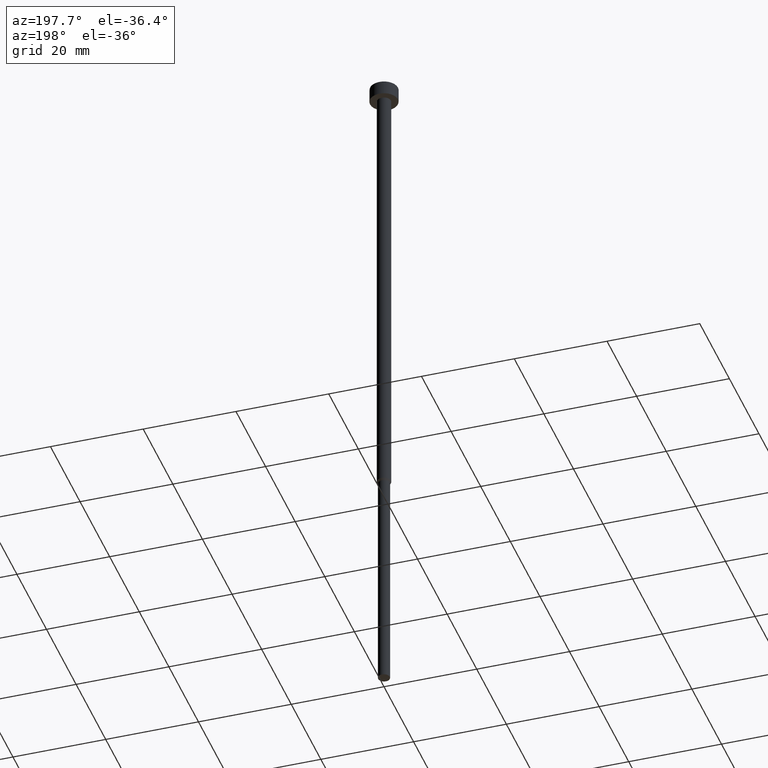
[diagram: clean part render]
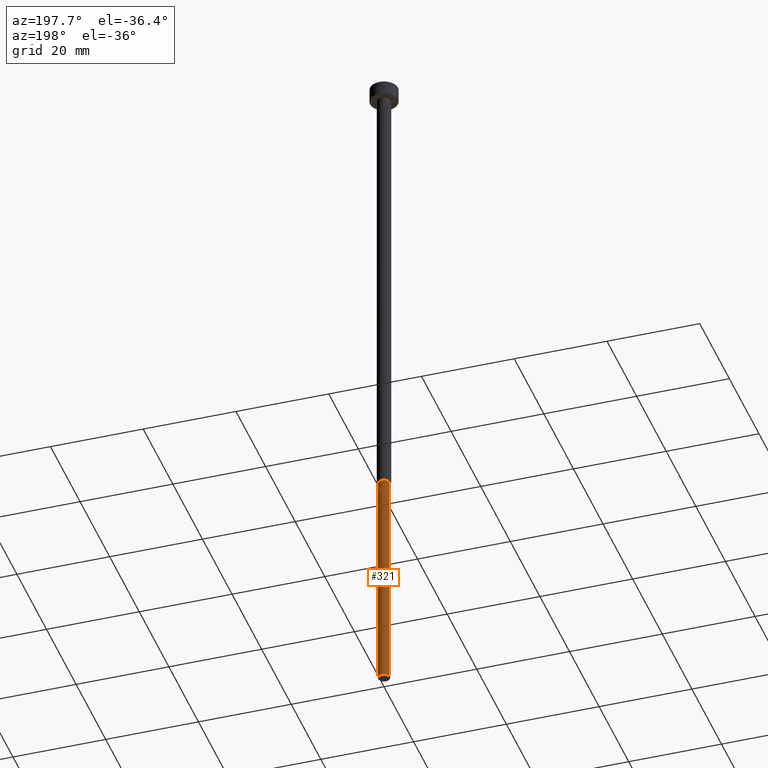
[diagram: same view with one face highlighted and labeled with its STEP entity id]
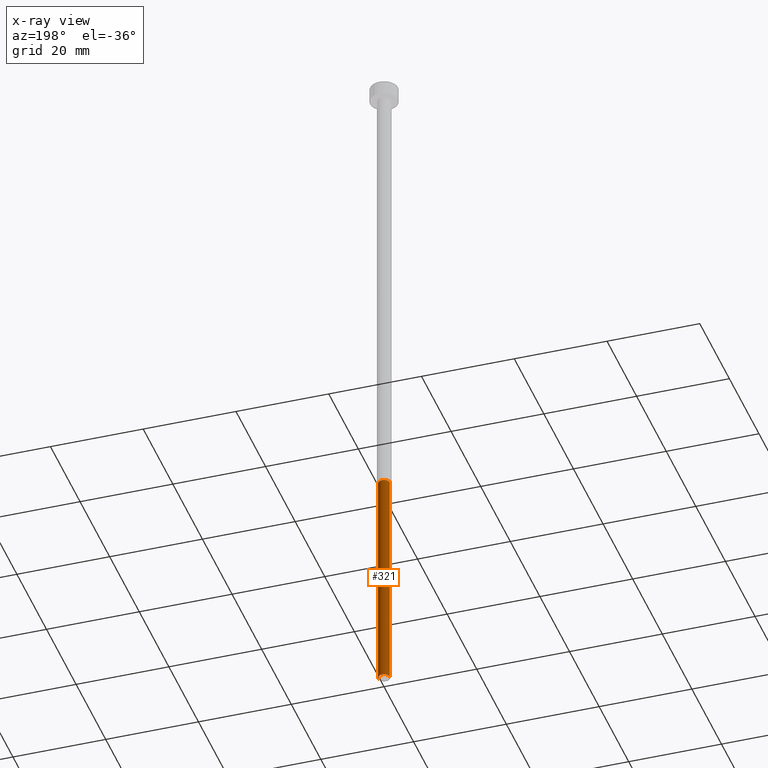
[diagram: x-ray of the same camera — body ghosted, the highlighted face saturated]
A machine part, auxiliary view. The second image highlights one B-rep face of the part: STEP entity #321.
The next image is the same camera in x-ray: the body ghosted, the highlighted face saturated — about 0% of this face is hidden behind the body in this view.
In plain terms, the highlighted cylindrical surface (edge-blend (fillet) strip) has radius 1.25 mm, axis along (-0, -0, 1).
Its self-contained STEP definition (entity closure, byte-faithful):
#11 = VECTOR ( 'NONE', #190, 1000.000000000000000 ) ;
#17 = DIRECTION ( 'NONE',  ( -0.000000000000000000, -0.000000000000000000, 1.000000000000000000 ) ) ;
#32 = VECTOR ( 'NONE', #36, 1000.000000000000000 ) ;
#33 = FACE_OUTER_BOUND ( 'NONE', #245, .T. ) ;
#36 = DIRECTION ( 'NONE',  ( -0.000000000000000000, -0.000000000000000000, 1.000000000000000000 ) ) ;
#46 = CARTESIAN_POINT ( 'NONE',  ( 0.000000000000000000, 0.000000000000000000, 0.000000000000000000 ) ) ;
#55 = CARTESIAN_POINT ( 'NONE',  ( 1.250000000000000000, 0.000000000000000000, -150.0000000000000000 ) ) ;
#63 = VERTEX_POINT ( 'NONE', #175 ) ;
#83 = CARTESIAN_POINT ( 'NONE',  ( -1.250000000000000000, 1.530808498934191571E-16, 0.000000000000000000 ) ) ;
#92 = AXIS2_PLACEMENT_3D ( 'NONE', #46, #163, #271 ) ;
#96 = CARTESIAN_POINT ( 'NONE',  ( 0.000000000000000000, 0.000000000000000000, -150.0000000000000000 ) ) ;
#97 = CIRCLE ( 'NONE', #129, 1.250000000000000000 ) ;
#114 = ORIENTED_EDGE ( 'NONE', *, *, #184, .F. ) ;
#124 = DIRECTION ( 'NONE',  ( 1.000000000000000000, 0.000000000000000000, 0.000000000000000000 ) ) ;
#129 = AXIS2_PLACEMENT_3D ( 'NONE', #96, #17, #124 ) ;
#143 = CARTESIAN_POINT ( 'NONE',  ( 1.250000000000000000, 0.000000000000000000, 0.000000000000000000 ) ) ;
#146 = CYLINDRICAL_SURFACE ( 'NONE', #92, 1.250000000000000000 ) ;
#150 = AXIS2_PLACEMENT_3D ( 'NONE', #159, #346, #217 ) ;
#153 = ORIENTED_EDGE ( 'NONE', *, *, #347, .T. ) ;
#159 = CARTESIAN_POINT ( 'NONE',  ( 0.000000000000000000, 0.000000000000000000, -100.4330127018922241 ) ) ;
#163 = DIRECTION ( 'NONE',  ( -0.000000000000000000, -0.000000000000000000, 1.000000000000000000 ) ) ;
#175 = CARTESIAN_POINT ( 'NONE',  ( 1.250000000000000000, 0.000000000000000000, -100.4330127018922241 ) ) ;
#179 = ORIENTED_EDGE ( 'NONE', *, *, #181, .T. ) ;
#181 = EDGE_CURVE ( 'NONE', #315, #242, #97, .T. ) ;
#184 = EDGE_CURVE ( 'NONE', #63, #255, #231, .T. ) ;
#190 = DIRECTION ( 'NONE',  ( -0.000000000000000000, -0.000000000000000000, 1.000000000000000000 ) ) ;
#217 = DIRECTION ( 'NONE',  ( 1.000000000000000000, 0.000000000000000000, 0.000000000000000000 ) ) ;
#231 = CIRCLE ( 'NONE', #150, 1.250000000000000000 ) ;
#235 = LINE ( 'NONE', #83, #32 ) ;
#242 = VERTEX_POINT ( 'NONE', #308 ) ;
#245 = EDGE_LOOP ( 'NONE', ( #179, #153, #114, #284 ) ) ;
#255 = VERTEX_POINT ( 'NONE', #273 ) ;
#271 = DIRECTION ( 'NONE',  ( 1.000000000000000000, 0.000000000000000000, 0.000000000000000000 ) ) ;
#273 = CARTESIAN_POINT ( 'NONE',  ( -1.250000000000000000, 1.530808498934191571E-16, -100.4330127018922241 ) ) ;
#284 = ORIENTED_EDGE ( 'NONE', *, *, #299, .F. ) ;
#299 = EDGE_CURVE ( 'NONE', #315, #63, #327, .T. ) ;
#308 = CARTESIAN_POINT ( 'NONE',  ( -1.250000000000000000, 1.530808498934191571E-16, -150.0000000000000000 ) ) ;
#315 = VERTEX_POINT ( 'NONE', #55 ) ;
#321 = ADVANCED_FACE ( 'NONE', ( #33 ), #146, .T. ) ;
#327 = LINE ( 'NONE', #143, #11 ) ;
#346 = DIRECTION ( 'NONE',  ( -0.000000000000000000, -0.000000000000000000, 1.000000000000000000 ) ) ;
#347 = EDGE_CURVE ( 'NONE', #242, #255, #235, .T. ) ;